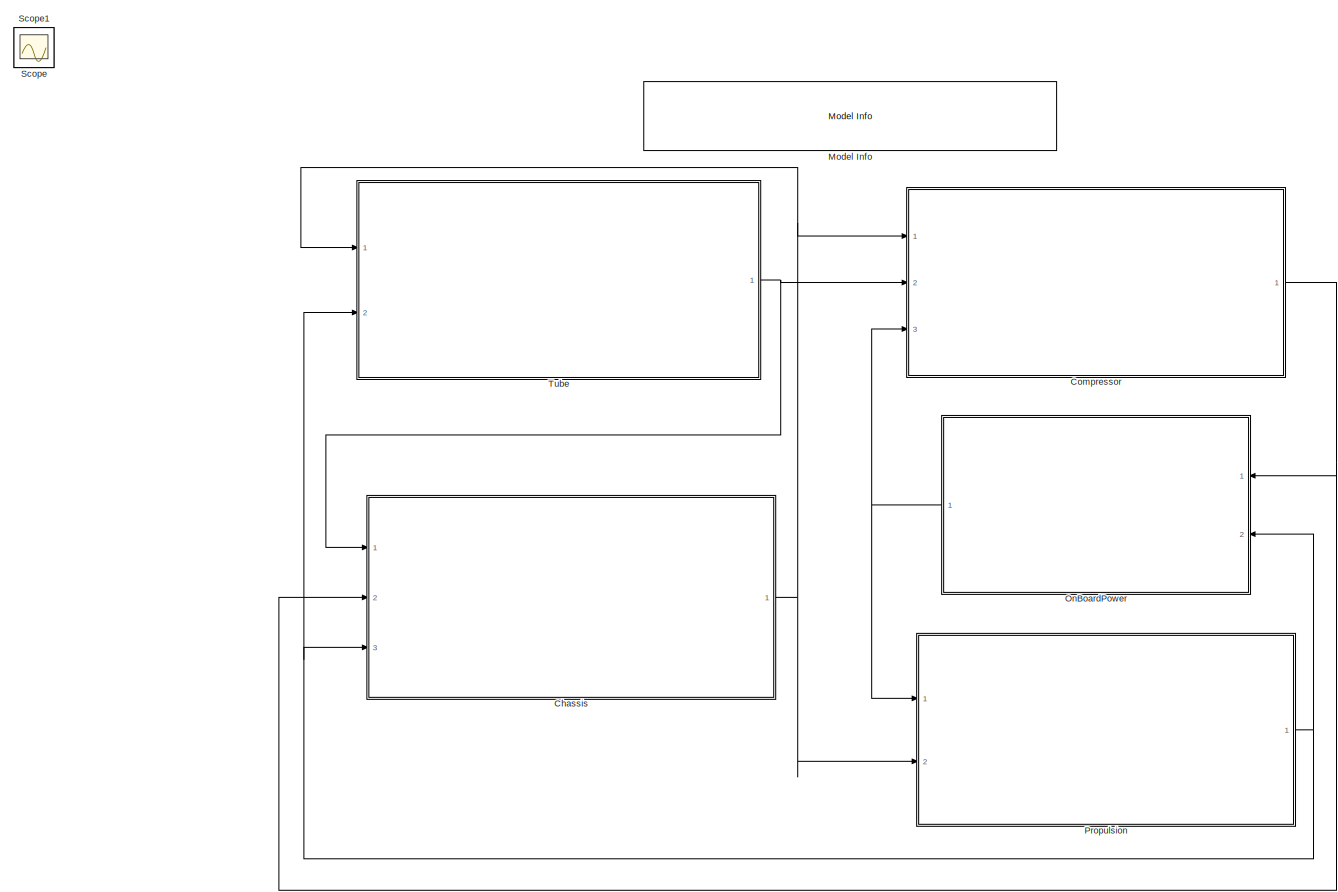
[diagram: root canvas - part 1/1, most of the canvas]
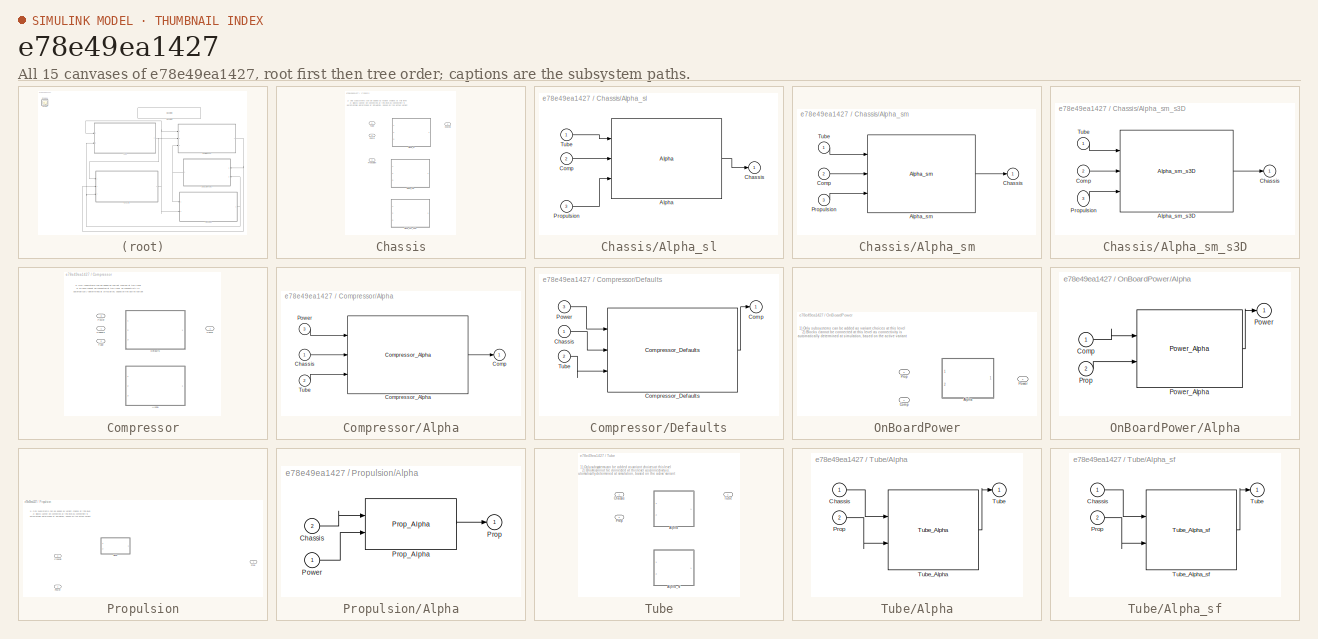
[diagram: thumbnail index - all 15 canvases of the model, root first then tree order]
MODEL slx_e78e49ea1427
KIND model
CONFIG AbsTol = auto
CONFIG EnableMultiTasking = on
CONFIG FixedStep = 0.01
CONFIG MaxStep = auto
CONFIG MinStep = auto
CONFIG RelTol = 1e-3
CONFIG SampleTimeConstraint = Unconstrained
CONFIG Solver = ode45
CONFIG SolverName = ode45
CONFIG StartTime = 0.0
CONFIG StopFcn = stopFcn_hyperloop_arc
CONFIG StopTime = inf
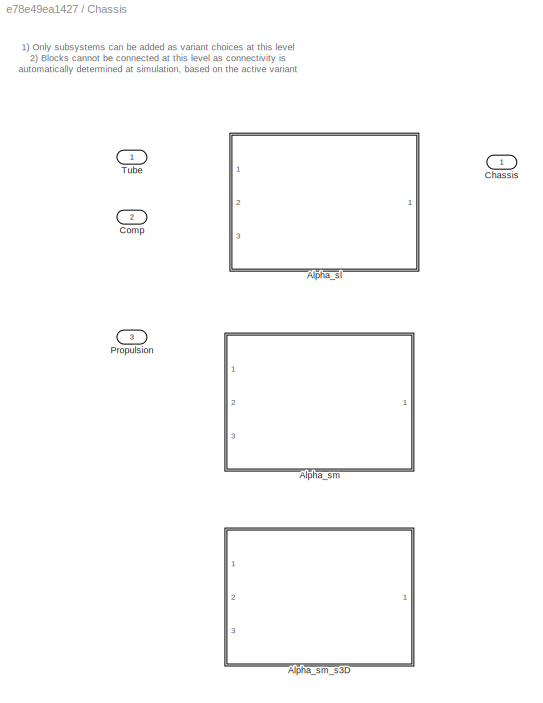
BLOCK [SubSystem] Chassis
  Ports = [3, 1]
  RequestExecContextInheritance = off
  ShowPortLabels = FromPortBlockName
  Variant = on
BLOCK [SubSystem] Chassis/Alpha_sl
  Ports = [3, 1]
  RequestExecContextInheritance = off
  VariantControl = VAR_Chassis==varChassis.Alpha
BLOCK [Reference] Chassis/Alpha_sl/Alpha  REF=Chassis_Alpha/Alpha
  Ports = [3, 1]
  SourceBlock = Chassis_Alpha/Alpha
  SourceType = SubSystem
BLOCK [Outport] Chassis/Alpha_sl/Chassis
  IconDisplay = Port number
BLOCK [Inport] Chassis/Alpha_sl/Comp
  IconDisplay = Port number
  Port = 2
BLOCK [Inport] Chassis/Alpha_sl/Propulsion
  IconDisplay = Port number
  Port = 3
BLOCK [Inport] Chassis/Alpha_sl/Tube 
  IconDisplay = Port number
BLOCK [SubSystem] Chassis/Alpha_sm
  Ports = [3, 1]
  RequestExecContextInheritance = off
  VariantControl = VAR_Chassis==varChassis.Alpha_sm
BLOCK [Reference] Chassis/Alpha_sm/Alpha_sm  REF=Chassis_Alpha_sm/Alpha_sm
  Ports = [3, 1]
  SourceBlock = Chassis_Alpha_sm/Alpha_sm
  SourceType = SubSystem
BLOCK [Outport] Chassis/Alpha_sm/Chassis
  IconDisplay = Port number
BLOCK [Inport] Chassis/Alpha_sm/Comp
  IconDisplay = Port number
  Port = 2
BLOCK [Inport] Chassis/Alpha_sm/Propulsion
  IconDisplay = Port number
  Port = 3
BLOCK [Inport] Chassis/Alpha_sm/Tube 
  IconDisplay = Port number
BLOCK [SubSystem] Chassis/Alpha_sm_s3D
  Ports = [3, 1]
  RequestExecContextInheritance = off
  VariantControl = VAR_Chassis==varChassis.Alpha_sm_s3D
BLOCK [Reference] Chassis/Alpha_sm_s3D/Alpha_sm_s3D  REF=Chassis_Alpha_sm_s3d/Alpha_sm_s3D
  Ports = [3, 1]
  SourceBlock = Chassis_Alpha_sm_s3d/Alpha_sm_s3D
  SourceType = SubSystem
BLOCK [Outport] Chassis/Alpha_sm_s3D/Chassis
  IconDisplay = Port number
BLOCK [Inport] Chassis/Alpha_sm_s3D/Comp
  IconDisplay = Port number
  Port = 2
BLOCK [Inport] Chassis/Alpha_sm_s3D/Propulsion
  IconDisplay = Port number
  Port = 3
BLOCK [Inport] Chassis/Alpha_sm_s3D/Tube 
  IconDisplay = Port number
BLOCK [Outport] Chassis/Chassis
  IconDisplay = Port number
BLOCK [Inport] Chassis/Comp
  IconDisplay = Port number
  Port = 2
BLOCK [Inport] Chassis/Propulsion
  IconDisplay = Port number
  Port = 3
BLOCK [Inport] Chassis/Tube 
  IconDisplay = Port number
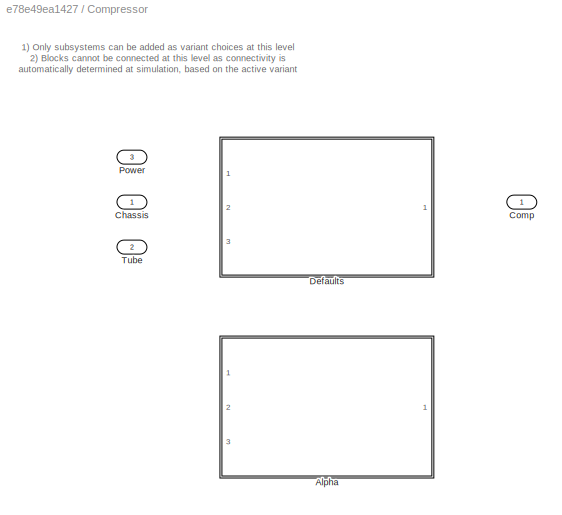
BLOCK [SubSystem] Compressor
  Ports = [3, 1]
  RequestExecContextInheritance = off
  Variant = on
BLOCK [SubSystem] Compressor/Alpha
  Ports = [3, 1]
  RequestExecContextInheritance = off
  VariantControl = VAR_COMP==varComp.Alpha
BLOCK [Inport] Compressor/Alpha/Chassis
  IconDisplay = Port number
BLOCK [Outport] Compressor/Alpha/Comp
  IconDisplay = Port number
BLOCK [Reference] Compressor/Alpha/Compressor_Alpha  REF=Compressor_Alpha/Compressor_Alpha
  Ports = [3, 1]
  SourceBlock = Compressor_Alpha/Compressor_Alpha
  SourceType = SubSystem
BLOCK [Inport] Compressor/Alpha/Power
  IconDisplay = Port number
  Port = 3
BLOCK [Inport] Compressor/Alpha/Tube
  IconDisplay = Port number
  Port = 2
BLOCK [Inport] Compressor/Chassis
  IconDisplay = Port number
BLOCK [Outport] Compressor/Comp
  IconDisplay = Port number
BLOCK [SubSystem] Compressor/Defaults
  Ports = [3, 1]
  RequestExecContextInheritance = off
  VariantControl = VAR_COMP==varComp.Defaults
BLOCK [Inport] Compressor/Defaults/Chassis
  IconDisplay = Port number
BLOCK [Outport] Compressor/Defaults/Comp
  IconDisplay = Port number
BLOCK [Reference] Compressor/Defaults/Compressor_Defaults  REF=Compressor_Defaults/Compressor_Defaults
  Ports = [3, 1]
  SourceBlock = Compressor_Defaults/Compressor_Defaults
  SourceType = SubSystem
BLOCK [Inport] Compressor/Defaults/Power
  IconDisplay = Port number
  Port = 3
BLOCK [Inport] Compressor/Defaults/Tube
  IconDisplay = Port number
  Port = 2
BLOCK [Inport] Compressor/Power
  IconDisplay = Port number
  Port = 3
BLOCK [Inport] Compressor/Tube
  IconDisplay = Port number
  Port = 2
BLOCK [Reference] Model Info  REF=simulink/Model-Wide
Utilities/Model Info
  Ports = []
  SourceBlock = simulink/Model-Wide\nUtilities/Model Info
  SourceProductBaseCode = SL
  SourceProductName = Simulink
  SourceType = CMBlock
BLOCK [SubSystem] OnBoardPower
  Ports = [2, 1]
  RequestExecContextInheritance = off
  Variant = on
BLOCK [SubSystem] OnBoardPower/Alpha
  Ports = [2, 1]
  RequestExecContextInheritance = off
  VariantControl = VAR_POWER==varPower.Alpha
BLOCK [Inport] OnBoardPower/Alpha/Comp
  IconDisplay = Port number
BLOCK [Outport] OnBoardPower/Alpha/Power
  IconDisplay = Port number
BLOCK [Reference] OnBoardPower/Alpha/Power_Alpha  REF=Power_Alpha/Power_Alpha
  Ports = [2, 1]
  SourceBlock = Power_Alpha/Power_Alpha
  SourceType = SubSystem
BLOCK [Inport] OnBoardPower/Alpha/Prop
  IconDisplay = Port number
  Port = 2
BLOCK [Inport] OnBoardPower/Comp
  IconDisplay = Port number
BLOCK [Outport] OnBoardPower/Power
  IconDisplay = Port number
BLOCK [Inport] OnBoardPower/Prop
  IconDisplay = Port number
  Port = 2
BLOCK [SubSystem] Propulsion
  Ports = [2, 1]
  RequestExecContextInheritance = off
  ShowPortLabels = FromPortBlockName
  Variant = on
BLOCK [SubSystem] Propulsion/Alpha
  Ports = [2, 1]
  RequestExecContextInheritance = off
  VariantControl = VAR_PROP==varProp.Alpha
BLOCK [Inport] Propulsion/Alpha/Chassis
  IconDisplay = Port number
  Port = 2
BLOCK [Inport] Propulsion/Alpha/Power
  IconDisplay = Port number
BLOCK [Outport] Propulsion/Alpha/Prop
  IconDisplay = Port number
BLOCK [Reference] Propulsion/Alpha/Prop_Alpha  REF=Prop_Alpha/Prop_Alpha
  Ports = [2, 1]
  SourceBlock = Prop_Alpha/Prop_Alpha
  SourceType = SubSystem
BLOCK [Inport] Propulsion/Chassis
  IconDisplay = Port number
  Port = 2
BLOCK [Inport] Propulsion/Power
  IconDisplay = Port number
BLOCK [Outport] Propulsion/Prop
  IconDisplay = Port number
BLOCK [Scope] Scope
  Floating = off
  IOType = viewer
  NumInputPorts = 1
  Ports = []
  ScopeSpecificationString = C++SS(StrPVP('Location','[902, 180, 1582, 1050]'),StrPVP('Open','off'),MxPVP('AxesTitles',54,'struct(''axes1'',''%<SignalLabel>'',''axes2'',''%<SignalLabel>'',''axes3'',''%<SignalLabel>'')'),StrPVP('ShowLegends','off'),StrPVP('YMin','95~-1~332.975'),StrPVP('YMax','105~1~368.025'),StrPVP('MaxDataPoints','10000'),StrPVP('Decimation','10'),StrPVP('ScrollMode','off'),StrPVP('LimitDataPoints','on'),Str...<+64ch>
BLOCK [Scope] Scope1
  Floating = off
  IOType = viewer
  NumInputPorts = 1
  Ports = []
  ScopeSpecificationString = C++SS(StrPVP('Location','[188, 365, 512, 604]'),StrPVP('Open','off'),MxPVP('AxesTitles',54,'struct(''axes1'',''%<SignalLabel>'')'),StrPVP('ShowLegends','off'),StrPVP('YMin','-1616.74'),StrPVP('YMax','-1616.74'),StrPVP('SaveName','ScopeData1'),StrPVP('MaxDataPoints','7500'),StrPVP('ScrollMode','off'),StrPVP('LimitDataPoints','on'),StrPVP('DataFormat','Array'),StrPVP('Decimation','1'),StrPVP('BlockP...<+24ch>
BLOCK [SubSystem] Tube
  Ports = [2, 1]
  RequestExecContextInheritance = off
  ShowPortLabels = FromPortBlockName
  Variant = on
BLOCK [SubSystem] Tube/Alpha
  Ports = [2, 1]
  RequestExecContextInheritance = off
  VariantControl = VAR_TUBE == varTube.Alpha
BLOCK [Inport] Tube/Alpha/Chassis
  IconDisplay = Port number
BLOCK [Inport] Tube/Alpha/Prop
  IconDisplay = Port number
  Port = 2
BLOCK [Outport] Tube/Alpha/Tube
  IconDisplay = Port number
BLOCK [Reference] Tube/Alpha/Tube_Alpha  REF=Tube_Alpha/Tube_Alpha
  Ports = [2, 1]
  SourceBlock = Tube_Alpha/Tube_Alpha
  SourceType = SubSystem
BLOCK [SubSystem] Tube/Alpha_sf
  Ports = [2, 1]
  RequestExecContextInheritance = off
  VariantControl = VAR_TUBE == varTube.Alpha_sf
BLOCK [Inport] Tube/Alpha_sf/Chassis
  IconDisplay = Port number
BLOCK [Inport] Tube/Alpha_sf/Prop
  IconDisplay = Port number
  Port = 2
BLOCK [Outport] Tube/Alpha_sf/Tube
  IconDisplay = Port number
BLOCK [Reference] Tube/Alpha_sf/Tube_Alpha_sf  REF=Tube_Alpha_sf/Tube_Alpha_sf
  Ports = [2, 1]
  SourceBlock = Tube_Alpha_sf/Tube_Alpha_sf
  SourceType = SubSystem
BLOCK [Inport] Tube/Chassis
  IconDisplay = Port number
BLOCK [Inport] Tube/Prop
  IconDisplay = Port number
  Port = 2
BLOCK [Outport] Tube/Tube
  IconDisplay = Port number
ANNOTATION Chassis: 1) Only subsystems can be added as variant choices at this level 2) Blocks cannot be connected at this level as connectivity is automatically determined at simulation, based on the active variant
ANNOTATION Compressor: 1) Only subsystems can be added as variant choices at this level 2) Blocks cannot be connected at this level as connectivity is automatically determined at simulation, based on the active variant
ANNOTATION OnBoardPower: 1) Only subsystems can be added as variant choices at this level 2) Blocks cannot be connected at this level as connectivity is automatically determined at simulation, based on the active variant
ANNOTATION Propulsion: 1) Only subsystems can be added as variant choices at this level 2) Blocks cannot be connected at this level as connectivity is automatically determined at simulation, based on the active variant
ANNOTATION Tube: 1) Only subsystems can be added as variant choices at this level 2) Blocks cannot be connected at this level as connectivity is automatically determined at simulation, based on the active variant
LINE Chassis/Alpha_sl/Alpha:1 -> Chassis/Alpha_sl/Chassis:1
LINE Chassis/Alpha_sl/Comp:1 -> Chassis/Alpha_sl/Alpha:2
LINE Chassis/Alpha_sl/Propulsion:1 -> Chassis/Alpha_sl/Alpha:3
LINE Chassis/Alpha_sl/Tube :1 -> Chassis/Alpha_sl/Alpha:1
LINE Chassis/Alpha_sm/Alpha_sm:1 -> Chassis/Alpha_sm/Chassis:1
LINE Chassis/Alpha_sm/Comp:1 -> Chassis/Alpha_sm/Alpha_sm:2
LINE Chassis/Alpha_sm/Propulsion:1 -> Chassis/Alpha_sm/Alpha_sm:3
LINE Chassis/Alpha_sm/Tube :1 -> Chassis/Alpha_sm/Alpha_sm:1
LINE Chassis/Alpha_sm_s3D/Alpha_sm_s3D:1 -> Chassis/Alpha_sm_s3D/Chassis:1
LINE Chassis/Alpha_sm_s3D/Comp:1 -> Chassis/Alpha_sm_s3D/Alpha_sm_s3D:2
LINE Chassis/Alpha_sm_s3D/Propulsion:1 -> Chassis/Alpha_sm_s3D/Alpha_sm_s3D:3
LINE Chassis/Alpha_sm_s3D/Tube :1 -> Chassis/Alpha_sm_s3D/Alpha_sm_s3D:1
NET Chassis:1 -> Compressor:1, Propulsion:2, Tube:1
LINE Compressor/Alpha/Chassis:1 -> Compressor/Alpha/Compressor_Alpha:2
LINE Compressor/Alpha/Compressor_Alpha:1 -> Compressor/Alpha/Comp:1
LINE Compressor/Alpha/Power:1 -> Compressor/Alpha/Compressor_Alpha:1
LINE Compressor/Alpha/Tube:1 -> Compressor/Alpha/Compressor_Alpha:3
LINE Compressor/Defaults/Chassis:1 -> Compressor/Defaults/Compressor_Defaults:2
LINE Compressor/Defaults/Compressor_Defaults:1 -> Compressor/Defaults/Comp:1
LINE Compressor/Defaults/Power:1 -> Compressor/Defaults/Compressor_Defaults:1
LINE Compressor/Defaults/Tube:1 -> Compressor/Defaults/Compressor_Defaults:3
NET Compressor:1 -> Chassis:2, OnBoardPower:1
LINE OnBoardPower/Alpha/Comp:1 -> OnBoardPower/Alpha/Power_Alpha:1
LINE OnBoardPower/Alpha/Power_Alpha:1 -> OnBoardPower/Alpha/Power:1
LINE OnBoardPower/Alpha/Prop:1 -> OnBoardPower/Alpha/Power_Alpha:2
NET OnBoardPower:1 -> Compressor:3, Propulsion:1
LINE Propulsion/Alpha/Chassis:1 -> Propulsion/Alpha/Prop_Alpha:1
LINE Propulsion/Alpha/Power:1 -> Propulsion/Alpha/Prop_Alpha:2
LINE Propulsion/Alpha/Prop_Alpha:1 -> Propulsion/Alpha/Prop:1
NET Propulsion:1 -> Chassis:3, OnBoardPower:2, Tube:2
LINE Tube/Alpha/Chassis:1 -> Tube/Alpha/Tube_Alpha:1
LINE Tube/Alpha/Prop:1 -> Tube/Alpha/Tube_Alpha:2
LINE Tube/Alpha/Tube_Alpha:1 -> Tube/Alpha/Tube:1
LINE Tube/Alpha_sf/Chassis:1 -> Tube/Alpha_sf/Tube_Alpha_sf:1
LINE Tube/Alpha_sf/Prop:1 -> Tube/Alpha_sf/Tube_Alpha_sf:2
LINE Tube/Alpha_sf/Tube_Alpha_sf:1 -> Tube/Alpha_sf/Tube:1
NET Tube:1 -> Chassis:1, Compressor:2
note: NET lines group one-source signal fan-out (src -> all destinations, sorted); 1:1 wires keep LINE
